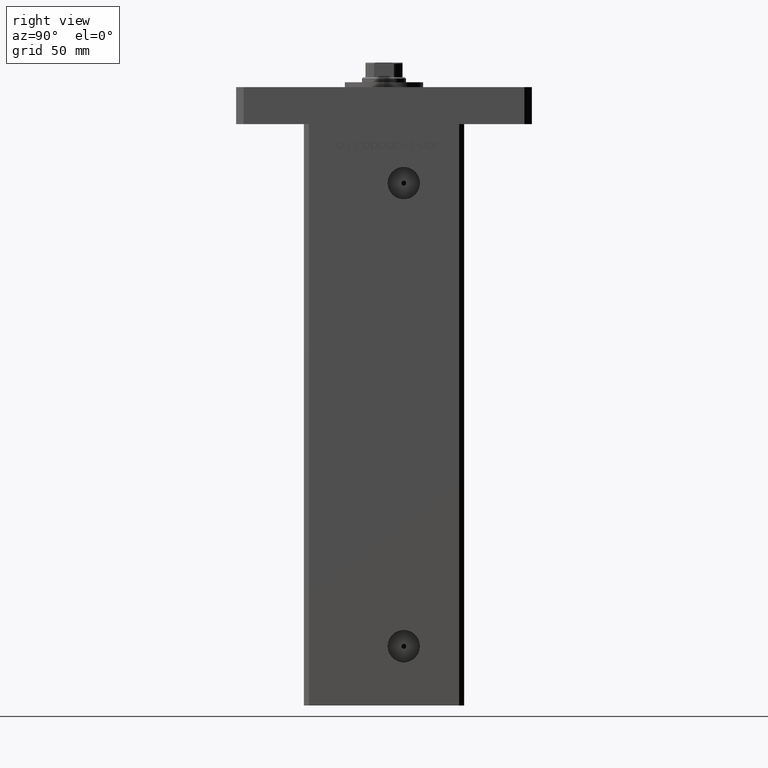
[diagram: clean part render]
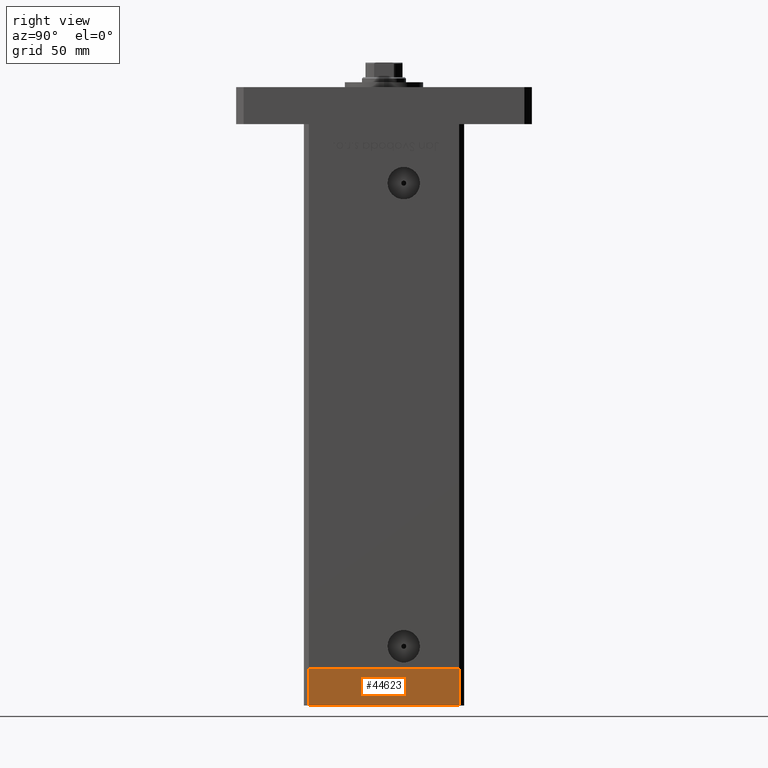
[diagram: same view with one face highlighted and labeled with its STEP entity id]
A machine part, right view. The second image highlights one B-rep face of the part: STEP entity #44623.
In plain terms, the highlighted planar face has unit normal (1, -0, 0).
Its self-contained STEP definition (entity closure, byte-faithful):
#2719 = ORIENTED_EDGE ( 'NONE', *, *, #18776, .T. ) ;
#3946 = CARTESIAN_POINT ( 'NONE',  ( -37.50000000000001421, 30.49999999999998579, -15.00000000000000000 ) ) ;
#4741 = LINE ( 'NONE', #3946, #27127 ) ;
#7111 = CARTESIAN_POINT ( 'NONE',  ( -37.49999999999998579, -30.50000000000001421, 0.000000000000000000 ) ) ;
#9231 = EDGE_CURVE ( 'NONE', #25694, #37076, #4741, .T. ) ;
#10593 = EDGE_CURVE ( 'NONE', #25694, #19663, #48019, .T. ) ;
#10898 = DIRECTION ( 'NONE',  ( 0.000000000000000000, 0.000000000000000000, 1.000000000000000000 ) ) ;
#11196 = FACE_OUTER_BOUND ( 'NONE', #46268, .T. ) ;
#14044 = CARTESIAN_POINT ( 'NONE',  ( -37.50000000000001421, 30.49999999999998579, 0.000000000000000000 ) ) ;
#14610 = CARTESIAN_POINT ( 'NONE',  ( -37.49999999999998579, -30.50000000000001421, -15.00000000000000000 ) ) ;
#14743 = VECTOR ( 'NONE', #38701, 1000.000000000000000 ) ;
#14788 = ORIENTED_EDGE ( 'NONE', *, *, #10593, .F. ) ;
#17427 = AXIS2_PLACEMENT_3D ( 'NONE', #23928, #24183, #36127 ) ;
#18776 = EDGE_CURVE ( 'NONE', #37076, #49746, #24749, .T. ) ;
#19663 = VERTEX_POINT ( 'NONE', #38020 ) ;
#23928 = CARTESIAN_POINT ( 'NONE',  ( -37.50000000000001421, 30.49999999999998579, -15.00000000000000000 ) ) ;
#24183 = DIRECTION ( 'NONE',  ( -1.000000000000000000, -4.550094363217855288E-16, 0.000000000000000000 ) ) ;
#24664 = ORIENTED_EDGE ( 'NONE', *, *, #9231, .T. ) ;
#24749 = LINE ( 'NONE', #53472, #44784 ) ;
#25694 = VERTEX_POINT ( 'NONE', #26904 ) ;
#26904 = CARTESIAN_POINT ( 'NONE',  ( -37.50000000000001421, 30.49999999999998579, -15.00000000000000000 ) ) ;
#27127 = VECTOR ( 'NONE', #41595, 1000.000000000000000 ) ;
#29754 = LINE ( 'NONE', #14044, #14743 ) ;
#31314 = ORIENTED_EDGE ( 'NONE', *, *, #31639, .F. ) ;
#31639 = EDGE_CURVE ( 'NONE', #19663, #49746, #29754, .T. ) ;
#32345 = DIRECTION ( 'NONE',  ( 0.000000000000000000, 0.000000000000000000, 1.000000000000000000 ) ) ;
#36097 = CARTESIAN_POINT ( 'NONE',  ( -37.50000000000001421, 30.49999999999998579, -15.00000000000000000 ) ) ;
#36127 = DIRECTION ( 'NONE',  ( 4.550094363217855288E-16, -1.000000000000000000, 0.000000000000000000 ) ) ;
#37076 = VERTEX_POINT ( 'NONE', #14610 ) ;
#38020 = CARTESIAN_POINT ( 'NONE',  ( -37.50000000000001421, 30.49999999999998579, 0.000000000000000000 ) ) ;
#38701 = DIRECTION ( 'NONE',  ( 4.550094363217855288E-16, -1.000000000000000000, 0.000000000000000000 ) ) ;
#40455 = PLANE ( 'NONE',  #17427 ) ;
#41595 = DIRECTION ( 'NONE',  ( 4.550094363217855288E-16, -1.000000000000000000, 0.000000000000000000 ) ) ;
#42755 = VECTOR ( 'NONE', #10898, 1000.000000000000000 ) ;
#44623 = ADVANCED_FACE ( 'NONE', ( #11196 ), #40455, .T. ) ;
#44784 = VECTOR ( 'NONE', #32345, 1000.000000000000000 ) ;
#46268 = EDGE_LOOP ( 'NONE', ( #31314, #14788, #24664, #2719 ) ) ;
#48019 = LINE ( 'NONE', #36097, #42755 ) ;
#49746 = VERTEX_POINT ( 'NONE', #7111 ) ;
#53472 = CARTESIAN_POINT ( 'NONE',  ( -37.49999999999998579, -30.50000000000001421, -15.00000000000000000 ) ) ;